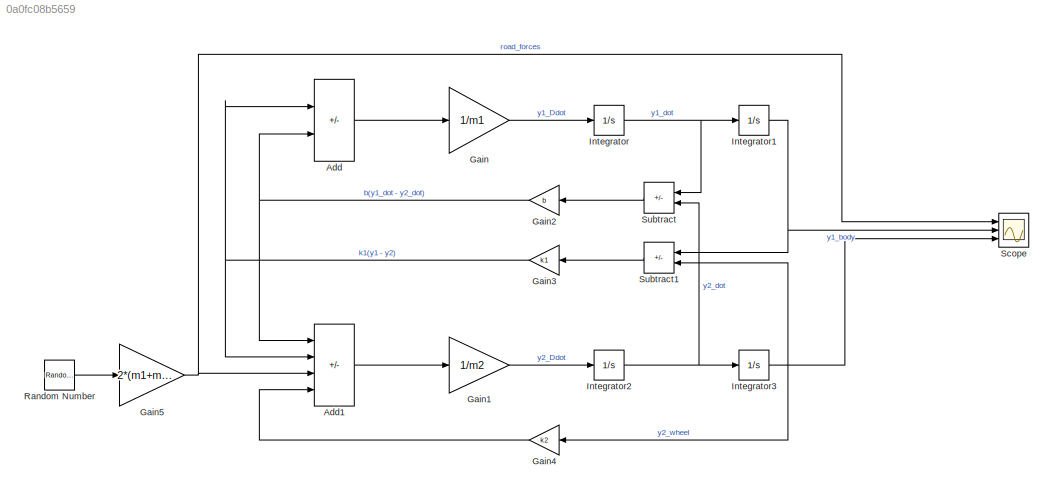
MODEL slx_0a0fc08b5659
KIND model
CONFIG AbsTol = auto
CONFIG EnableMultiTasking = off
CONFIG FixedStep = auto
CONFIG MaxStep = auto
CONFIG MinStep = auto
CONFIG RelTol = 1e-3
CONFIG SampleTimeConstraint = Unconstrained
CONFIG Solver = VariableStepAuto
CONFIG SolverName = VariableStepAuto
CONFIG StartTime = 0.0
CONFIG StopTime = 100.0
BLOCK [Sum] Add
  IconShape = rectangular
  Inputs = --
  Ports = [2, 1]
BLOCK [Sum] Add1
  IconShape = rectangular
  Inputs = +++-
  Ports = [4, 1]
BLOCK [Gain] Gain
  Gain = 1/m1
BLOCK [Gain] Gain1
  Gain = 1/m2
BLOCK [Gain] Gain2
  Gain = b
  NameLocation = top
BLOCK [Gain] Gain3
  Gain = k1
  NameLocation = top
BLOCK [Gain] Gain4
  Gain = k2
  NameLocation = top
BLOCK [Gain] Gain5
  Gain = 2*(m1+m2)
BLOCK [Integrator] Integrator
  Ports = [1, 1]
BLOCK [Integrator] Integrator1
  Ports = [1, 1]
BLOCK [Integrator] Integrator2
  Ports = [1, 1]
BLOCK [Integrator] Integrator3
  Ports = [1, 1]
BLOCK [RandomNumber] Random Number
  SampleTime = 0.1
  Seed = 1
BLOCK [Scope] Scope
  Floating = off
  NumInputPorts = 3
  Ports = [3]
  ScopeSpecificationString = Simulink.scopes.TimeScopeBlockCfg('CurrentConfiguration', extmgr.ConfigurationSet(extmgr.Configuration('Core','General UI',true),extmgr.Configuration('Core','Source UI',true),extmgr.Configuration('Sources','WiredSimulink',true),extmgr.Configuration('Visuals','Time Domain',true,'SerializedDisplays',{struct('MinYLimReal','-17129.88351','MaxYLimReal','15462.47003','YLabelReal','','MinYLimMag','   0.0...<+2721ch>
BLOCK [Sum] Subtract
  IconShape = rectangular
  Inputs = +-
  NameLocation = top
  Ports = [2, 1]
BLOCK [Sum] Subtract1
  IconShape = rectangular
  Inputs = +-
  NameLocation = top
  Ports = [2, 1]
LINE Add1:1 -> Gain1:1
LINE Add:1 -> Gain:1
LINE Gain1:1 -> Integrator2:1
NET Gain2:1 -> Add1:1, Add:2
NET Gain3:1 -> Add1:2, Add:1
LINE Gain4:1 -> Add1:4
NET Gain5:1 -> Add1:3, Scope:1
LINE Gain:1 -> Integrator:1
NET Integrator1:1 -> Scope:2, Subtract1:1
NET Integrator2:1 -> Integrator3:1, Subtract:2
NET Integrator3:1 -> Gain4:1, Scope:3, Subtract1:2
NET Integrator:1 -> Integrator1:1, Subtract:1
LINE Random Number:1 -> Gain5:1
LINE Subtract1:1 -> Gain3:1
LINE Subtract:1 -> Gain2:1
note: NET lines group one-source signal fan-out (src -> all destinations, sorted); 1:1 wires keep LINE
